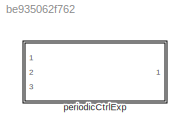
MODEL slx_be935062f762
KIND library
CONFIG AbsTol = auto
CONFIG EnableMultiTasking = off
CONFIG FixedStep = auto
CONFIG MaxStep = auto
CONFIG MinStep = auto
CONFIG RelTol = 1e-3
CONFIG SampleTimeConstraint = Unconstrained
CONFIG Solver = VariableStepAuto
CONFIG SolverName = VariableStepAuto
CONFIG StartTime = 0.0
CONFIG StopTime = 10.0
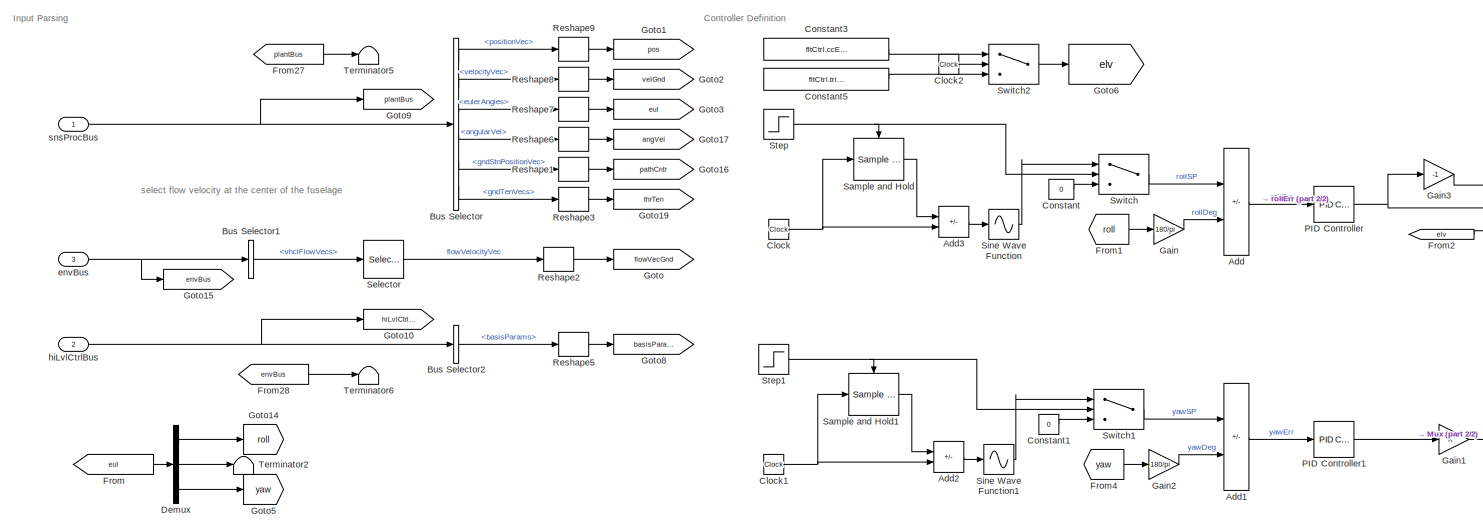
[diagram: periodicCtrlExp - part 1/2, center side, full height]
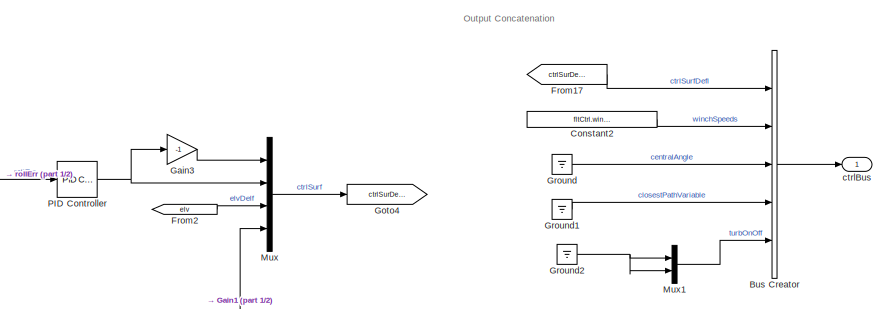
[diagram: periodicCtrlExp - part 2/2, middle right region]
BLOCK [SubSystem] periodicCtrlExp
  InitFcn = initializeBussesFromBlock(gcb)
  LoadFcn = initializeBussesFromBlock(gcb)
  Ports = [3, 1]
  RequestExecContextInheritance = off
BLOCK [Sum] periodicCtrlExp/Add
  IconShape = rectangular
  Inputs = +-
  Ports = [2, 1]
BLOCK [Sum] periodicCtrlExp/Add1
  IconShape = rectangular
  Inputs = +-
  Ports = [2, 1]
BLOCK [Sum] periodicCtrlExp/Add2
  IconShape = rectangular
  Inputs = -+
  Ports = [2, 1]
BLOCK [Sum] periodicCtrlExp/Add3
  IconShape = rectangular
  Inputs = -+
  Ports = [2, 1]
BLOCK [BusCreator] periodicCtrlExp/Bus Creator
  DisplayOption = bar
  InheritFromInputs = off
  Inputs = 5
  OutDataTypeStr = Bus: fltCtrlBus
  Ports = [5, 1]
BLOCK [BusSelector] periodicCtrlExp/Bus Selector
  OutputSignals = positionVec,velocityVec,eulerAngles,angularVel,gndStnPositionVec,gndTenVecs
  Ports = [1, 6]
BLOCK [BusSelector] periodicCtrlExp/Bus Selector1
  OutputSignals = vhclFlowVecs
  Ports = [1, 1]
BLOCK [BusSelector] periodicCtrlExp/Bus Selector2
  OutputSignals = basisParams
  Ports = [1, 1]
BLOCK [Clock] periodicCtrlExp/Clock
BLOCK [Clock] periodicCtrlExp/Clock1
BLOCK [Clock] periodicCtrlExp/Clock2
BLOCK [Constant] periodicCtrlExp/Constant
  Value = 0
BLOCK [Constant] periodicCtrlExp/Constant1
  Value = 0
BLOCK [Constant] periodicCtrlExp/Constant2
  Value = fltCtrl.winchSpeedIn.Value
BLOCK [Constant] periodicCtrlExp/Constant3
  Value = fltCtrl.ccElevator.Value
BLOCK [Constant] periodicCtrlExp/Constant5
  Value = fltCtrl.trimElevator.Value
BLOCK [Demux] periodicCtrlExp/Demux
  Outputs = 3
  Ports = [1, 3]
BLOCK [From] periodicCtrlExp/From
  GotoTag = eul
BLOCK [From] periodicCtrlExp/From1
  GotoTag = roll
BLOCK [From] periodicCtrlExp/From17
  GotoTag = ctrlSurDefl
BLOCK [From] periodicCtrlExp/From2
  GotoTag = elv
BLOCK [From] periodicCtrlExp/From27
  GotoTag = plantBus
BLOCK [From] periodicCtrlExp/From28
  GotoTag = envBus
BLOCK [From] periodicCtrlExp/From4
  GotoTag = yaw
BLOCK [Gain] periodicCtrlExp/Gain
  Gain = 180/pi
BLOCK [Gain] periodicCtrlExp/Gain1
BLOCK [Gain] periodicCtrlExp/Gain2
  Gain = 180/pi
BLOCK [Gain] periodicCtrlExp/Gain3
  Gain = -1
BLOCK [Goto] periodicCtrlExp/Goto
  Commented = on
  GotoTag = flowVecGnd
BLOCK [Goto] periodicCtrlExp/Goto1
  Commented = on
  GotoTag = pos
BLOCK [Goto] periodicCtrlExp/Goto10
  Commented = on
  GotoTag = hiLvlCtrlBus
BLOCK [Goto] periodicCtrlExp/Goto14
  GotoTag = roll
BLOCK [Goto] periodicCtrlExp/Goto15
  GotoTag = envBus
BLOCK [Goto] periodicCtrlExp/Goto16
  Commented = on
  GotoTag = pathCntr
BLOCK [Goto] periodicCtrlExp/Goto17
  Commented = on
  GotoTag = angVel
BLOCK [Goto] periodicCtrlExp/Goto19
  Commented = on
  GotoTag = thrTen
BLOCK [Goto] periodicCtrlExp/Goto2
  Commented = on
  GotoTag = velGnd
BLOCK [Goto] periodicCtrlExp/Goto3
  GotoTag = eul
BLOCK [Goto] periodicCtrlExp/Goto4
  GotoTag = ctrlSurDefl
BLOCK [Goto] periodicCtrlExp/Goto5
  GotoTag = yaw
BLOCK [Goto] periodicCtrlExp/Goto6
  GotoTag = elv
BLOCK [Goto] periodicCtrlExp/Goto8
  Commented = on
  GotoTag = basisParams
BLOCK [Goto] periodicCtrlExp/Goto9
  GotoTag = plantBus
BLOCK [Ground] periodicCtrlExp/Ground
BLOCK [Ground] periodicCtrlExp/Ground1
BLOCK [Ground] periodicCtrlExp/Ground2
BLOCK [Mux] periodicCtrlExp/Mux
  DisplayOption = bar
  Ports = [4, 1]
BLOCK [Mux] periodicCtrlExp/Mux1
  DisplayOption = bar
  Inputs = 2
  Ports = [2, 1]
BLOCK [Reference] periodicCtrlExp/PID Controller  REF=simulink/Continuous/PID Controller
  Ports = [1, 1]
  SourceBlock = simulink/Continuous/PID Controller
  SourceProductBaseCode = SL
  SourceType = PID 1dof
BLOCK [Reference] periodicCtrlExp/PID Controller1  REF=simulink/Continuous/PID Controller
  Ports = [1, 1]
  SourceBlock = simulink/Continuous/PID Controller
  SourceProductBaseCode = SL
  SourceType = PID 1dof
BLOCK [Reshape] periodicCtrlExp/Reshape1
  OutputDimensionality = Column vector (2-D)
  Ports = [1, 1]
BLOCK [Reshape] periodicCtrlExp/Reshape2
  OutputDimensionality = Column vector (2-D)
  Ports = [1, 1]
BLOCK [Reshape] periodicCtrlExp/Reshape3
  OutputDimensionality = Column vector (2-D)
  Ports = [1, 1]
BLOCK [Reshape] periodicCtrlExp/Reshape5
  OutputDimensionality = Column vector (2-D)
  Ports = [1, 1]
BLOCK [Reshape] periodicCtrlExp/Reshape6
  OutputDimensionality = Column vector (2-D)
  Ports = [1, 1]
BLOCK [Reshape] periodicCtrlExp/Reshape7
  OutputDimensionality = Column vector (2-D)
  Ports = [1, 1]
BLOCK [Reshape] periodicCtrlExp/Reshape8
  OutputDimensionality = Column vector (2-D)
  Ports = [1, 1]
BLOCK [Reshape] periodicCtrlExp/Reshape9
  OutputDimensionality = Column vector (2-D)
  Ports = [1, 1]
BLOCK [Reference] periodicCtrlExp/Sample and Hold  REF=dspsigops/Sample
and Hold
  Ports = [1, 1, 0, 1]
  SourceBlock = dspsigops/Sample\nand Hold
  SourceProductBaseCode = DS
  SourceType = Sample and Hold
BLOCK [Reference] periodicCtrlExp/Sample and Hold1  REF=dspsigops/Sample
and Hold
  Ports = [1, 1, 0, 1]
  SourceBlock = dspsigops/Sample\nand Hold
  SourceProductBaseCode = DS
  SourceType = Sample and Hold
BLOCK [Selector] periodicCtrlExp/Selector
  IndexOptions = Select all,Index vector (dialog)
  Indices = [1 3],5
  InputPortWidth = 3
  NumberOfDimensions = 2
  OutputSizes = 1,1
  Ports = [1, 1]
BLOCK [Sin] periodicCtrlExp/Sine Wave Function
  Amplitude = fltCtrl.rollAmp.Value
  Frequency = fltCtrl.frequency.Value
  Phase = fltCtrl.rollPhase.Value
  Ports = [1, 1]
  SampleTime = 0
  TimeSource = Use external signal
BLOCK [Sin] periodicCtrlExp/Sine Wave Function1
  Amplitude = fltCtrl.yawAmp.Value
  Frequency = fltCtrl.frequency.Value
  Phase = fltCtrl.yawPhase.Value
  Ports = [1, 1]
  SampleTime = 0
  TimeSource = Use external signal
BLOCK [Step] periodicCtrlExp/Step
  SampleTime = 0
  Time = fltCtrl.startCtrl.Value
BLOCK [Step] periodicCtrlExp/Step1
  SampleTime = 0
  Time = fltCtrl.startCtrl.Value
BLOCK [Switch] periodicCtrlExp/Switch
  Criteria = u2 > Threshold
  InputSameDT = off
  SaturateOnIntegerOverflow = off
BLOCK [Switch] periodicCtrlExp/Switch1
  Criteria = u2 > Threshold
  InputSameDT = off
  SaturateOnIntegerOverflow = off
BLOCK [Switch] periodicCtrlExp/Switch2
  Criteria = u2 > Threshold
  InputSameDT = off
  SaturateOnIntegerOverflow = off
  Threshold = fltCtrl.startCtrl.Value
BLOCK [Terminator] periodicCtrlExp/Terminator2
BLOCK [Terminator] periodicCtrlExp/Terminator5
BLOCK [Terminator] periodicCtrlExp/Terminator6
BLOCK [Outport] periodicCtrlExp/ctrlBus
  OutDataTypeStr = Bus: fltCtrlBus
  VectorParamsAs1DForOutWhenUnconnected = off
BLOCK [Inport] periodicCtrlExp/envBus
  OutDataTypeStr = Bus: envBus
  Port = 3
BLOCK [Inport] periodicCtrlExp/hiLvlCtrlBus
  OutDataTypeStr = Bus: hiLvlCtrlBus
  Port = 2
BLOCK [Inport] periodicCtrlExp/snsProcBus
  OutDataTypeStr = Bus: sensorsProcessingBus
ANNOTATION periodicCtrlExp: Controller Definition
ANNOTATION periodicCtrlExp: Input Parsing
ANNOTATION periodicCtrlExp: Output Concatenation
ANNOTATION periodicCtrlExp: select flow velocity at the center of the fuselage
LINE periodicCtrlExp/Add1:1 -> periodicCtrlExp/PID Controller1:1
LINE periodicCtrlExp/Add2:1 -> periodicCtrlExp/Sine Wave Function1:1
LINE periodicCtrlExp/Add3:1 -> periodicCtrlExp/Sine Wave Function:1
LINE periodicCtrlExp/Add:1 -> periodicCtrlExp/PID Controller:1
LINE periodicCtrlExp/Bus Creator:1 -> periodicCtrlExp/ctrlBus:1
LINE periodicCtrlExp/Bus Selector1:1 -> periodicCtrlExp/Selector:1
LINE periodicCtrlExp/Bus Selector2:1 -> periodicCtrlExp/Reshape5:1
LINE periodicCtrlExp/Bus Selector:1 -> periodicCtrlExp/Reshape9:1
LINE periodicCtrlExp/Bus Selector:2 -> periodicCtrlExp/Reshape8:1
LINE periodicCtrlExp/Bus Selector:3 -> periodicCtrlExp/Reshape7:1
LINE periodicCtrlExp/Bus Selector:4 -> periodicCtrlExp/Reshape6:1
LINE periodicCtrlExp/Bus Selector:5 -> periodicCtrlExp/Reshape1:1
LINE periodicCtrlExp/Bus Selector:6 -> periodicCtrlExp/Reshape3:1
NET periodicCtrlExp/Clock1:1 -> periodicCtrlExp/Add2:2, periodicCtrlExp/Sample and Hold1:1
LINE periodicCtrlExp/Clock2:1 -> periodicCtrlExp/Switch2:2
NET periodicCtrlExp/Clock:1 -> periodicCtrlExp/Add3:2, periodicCtrlExp/Sample and Hold:1
LINE periodicCtrlExp/Constant1:1 -> periodicCtrlExp/Switch1:3
LINE periodicCtrlExp/Constant2:1 -> periodicCtrlExp/Bus Creator:2
LINE periodicCtrlExp/Constant3:1 -> periodicCtrlExp/Switch2:1
LINE periodicCtrlExp/Constant5:1 -> periodicCtrlExp/Switch2:3
LINE periodicCtrlExp/Constant:1 -> periodicCtrlExp/Switch:3
LINE periodicCtrlExp/Demux:1 -> periodicCtrlExp/Goto14:1
LINE periodicCtrlExp/Demux:2 -> periodicCtrlExp/Terminator2:1
LINE periodicCtrlExp/Demux:3 -> periodicCtrlExp/Goto5:1
LINE periodicCtrlExp/From17:1 -> periodicCtrlExp/Bus Creator:1
LINE periodicCtrlExp/From1:1 -> periodicCtrlExp/Gain:1
LINE periodicCtrlExp/From27:1 -> periodicCtrlExp/Terminator5:1
LINE periodicCtrlExp/From28:1 -> periodicCtrlExp/Terminator6:1
LINE periodicCtrlExp/From2:1 -> periodicCtrlExp/Mux:3
LINE periodicCtrlExp/From4:1 -> periodicCtrlExp/Gain2:1
LINE periodicCtrlExp/From:1 -> periodicCtrlExp/Demux:1
LINE periodicCtrlExp/Gain1:1 -> periodicCtrlExp/Mux:4
LINE periodicCtrlExp/Gain2:1 -> periodicCtrlExp/Add1:2
LINE periodicCtrlExp/Gain3:1 -> periodicCtrlExp/Mux:1
LINE periodicCtrlExp/Gain:1 -> periodicCtrlExp/Add:2
LINE periodicCtrlExp/Ground1:1 -> periodicCtrlExp/Bus Creator:4
NET periodicCtrlExp/Ground2:1 -> periodicCtrlExp/Mux1:1, periodicCtrlExp/Mux1:2
LINE periodicCtrlExp/Ground:1 -> periodicCtrlExp/Bus Creator:3
LINE periodicCtrlExp/Mux1:1 -> periodicCtrlExp/Bus Creator:5
LINE periodicCtrlExp/Mux:1 -> periodicCtrlExp/Goto4:1
LINE periodicCtrlExp/PID Controller1:1 -> periodicCtrlExp/Gain1:1
NET periodicCtrlExp/PID Controller:1 -> periodicCtrlExp/Gain3:1, periodicCtrlExp/Mux:2
LINE periodicCtrlExp/Reshape1:1 -> periodicCtrlExp/Goto16:1
LINE periodicCtrlExp/Reshape2:1 -> periodicCtrlExp/Goto:1
LINE periodicCtrlExp/Reshape3:1 -> periodicCtrlExp/Goto19:1
LINE periodicCtrlExp/Reshape5:1 -> periodicCtrlExp/Goto8:1
LINE periodicCtrlExp/Reshape6:1 -> periodicCtrlExp/Goto17:1
LINE periodicCtrlExp/Reshape7:1 -> periodicCtrlExp/Goto3:1
LINE periodicCtrlExp/Reshape8:1 -> periodicCtrlExp/Goto2:1
LINE periodicCtrlExp/Reshape9:1 -> periodicCtrlExp/Goto1:1
LINE periodicCtrlExp/Sample and Hold1:1 -> periodicCtrlExp/Add2:1
LINE periodicCtrlExp/Sample and Hold:1 -> periodicCtrlExp/Add3:1
LINE periodicCtrlExp/Selector:1 -> periodicCtrlExp/Reshape2:1
LINE periodicCtrlExp/Sine Wave Function1:1 -> periodicCtrlExp/Switch1:1
LINE periodicCtrlExp/Sine Wave Function:1 -> periodicCtrlExp/Switch:1
NET periodicCtrlExp/Step1:1 -> periodicCtrlExp/Sample and Hold1:trigger, periodicCtrlExp/Switch1:2
NET periodicCtrlExp/Step:1 -> periodicCtrlExp/Sample and Hold:trigger, periodicCtrlExp/Switch:2
LINE periodicCtrlExp/Switch1:1 -> periodicCtrlExp/Add1:1
LINE periodicCtrlExp/Switch2:1 -> periodicCtrlExp/Goto6:1
LINE periodicCtrlExp/Switch:1 -> periodicCtrlExp/Add:1
NET periodicCtrlExp/envBus:1 -> periodicCtrlExp/Bus Selector1:1, periodicCtrlExp/Goto15:1
NET periodicCtrlExp/hiLvlCtrlBus:1 -> periodicCtrlExp/Bus Selector2:1, periodicCtrlExp/Goto10:1
NET periodicCtrlExp/snsProcBus:1 -> periodicCtrlExp/Bus Selector:1, periodicCtrlExp/Goto9:1
note: NET lines group one-source signal fan-out (src -> all destinations, sorted); 1:1 wires keep LINE
